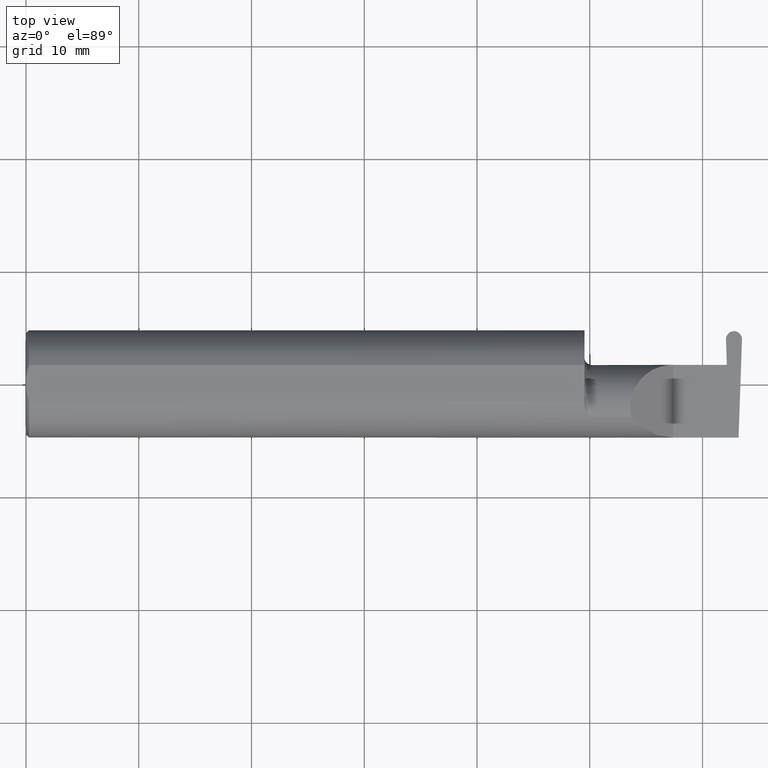
[diagram: clean part render]
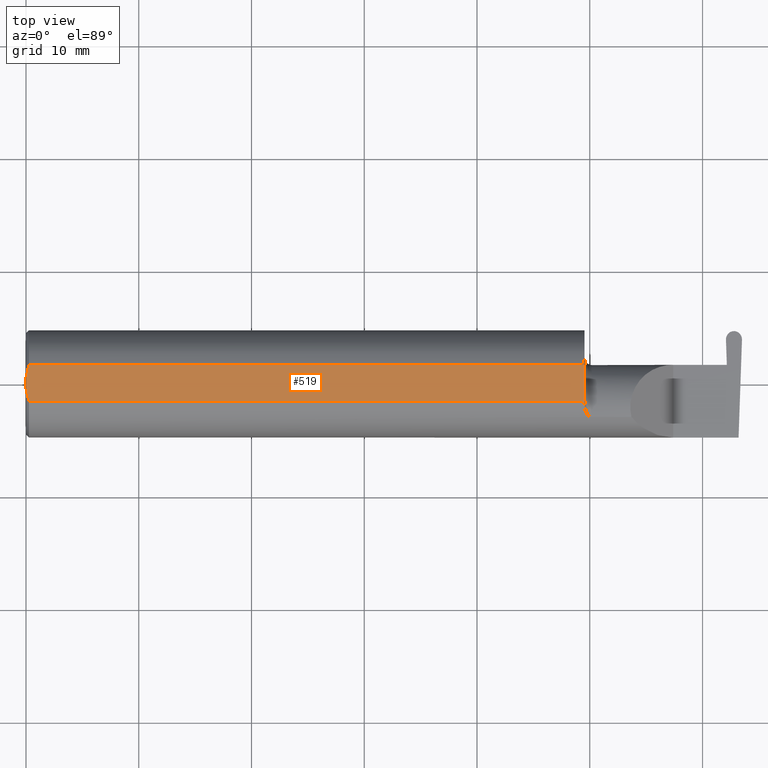
[diagram: same view with one face highlighted and labeled with its STEP entity id]
A machine part, top view. The second image highlights one B-rep face of the part: STEP entity #519.
In plain terms, the highlighted planar face has unit normal (0, 0, 1).
Its self-contained STEP definition (entity closure, byte-faithful):
#47 = ORIENTED_EDGE ( 'NONE', *, *, #165, .T. ) ;
#52 = LINE ( 'NONE', #478, #658 ) ;
#68 = DIRECTION ( 'NONE',  ( 1.000000000000000000, 0.000000000000000000, -0.000000000000000000 ) ) ;
#71 = CARTESIAN_POINT ( 'NONE',  ( 0.001616639753276218755, 0.03405189565400963680, 0.1763499999999999235 ) ) ;
#85 = VECTOR ( 'NONE', #417, 39.37007874015748143 ) ;
#101 = DIRECTION ( 'NONE',  ( -3.456985211662611914E-17, 1.000000000000000000, 0.000000000000000000 ) ) ;
#113 = CARTESIAN_POINT ( 'NONE',  ( 1.949999999999999956, 0.1873499999999998222, 0.1763499999999999235 ) ) ;
#121 = CARTESIAN_POINT ( 'NONE',  ( 0.000000000000000000, 0.01880691362239451242, 0.1763499999999999235 ) ) ;
#130 = CARTESIAN_POINT ( 'NONE',  ( 0.000000000000000000, 0.01880691362239451242, 0.1763499999999999235 ) ) ;
#158 = CARTESIAN_POINT ( 'NONE',  ( 0.000000000000000000, -0.01880691362239451242, 0.1763499999999999235 ) ) ;
#165 = EDGE_CURVE ( 'NONE', #430, #457, #352, .T. ) ;
#170 = VECTOR ( 'NONE', #325, 39.37007874015748143 ) ;
#174 = CARTESIAN_POINT ( 'NONE',  ( 0.005155213631852355663, 0.04890080824240217866, 0.1763499999999999235 ) ) ;
#177 = ORIENTED_EDGE ( 'NONE', *, *, #347, .F. ) ;
#194 = ORIENTED_EDGE ( 'NONE', *, *, #288, .T. ) ;
#200 = CARTESIAN_POINT ( 'NONE',  ( 0.000000000000000000, -0.01880691362239451242, 0.1763499999999999235 ) ) ;
#205 = VERTEX_POINT ( 'NONE', #528 ) ;
#266 = EDGE_LOOP ( 'NONE', ( #194, #541, #47, #341, #707, #177 ) ) ;
#267 = B_SPLINE_CURVE_WITH_KNOTS ( 'NONE', 3,
 ( #274, #332, #322, #200 ),
 .UNSPECIFIED., .F., .F.,
 ( 4, 4 ),
 ( 0.009771445421851449736, 0.01092787937989102981 ),
 .UNSPECIFIED. ) ;
#274 = CARTESIAN_POINT ( 'NONE',  ( 0.009999999999999346217, -0.06325108694718235836, 0.1763499999999999235 ) ) ;
#281 = EDGE_CURVE ( 'NONE', #296, #579, #600, .T. ) ;
#288 = EDGE_CURVE ( 'NONE', #205, #476, #52, .T. ) ;
#296 = VERTEX_POINT ( 'NONE', #158 ) ;
#299 = EDGE_CURVE ( 'NONE', #476, #430, #704, .T. ) ;
#306 = CARTESIAN_POINT ( 'NONE',  ( 0.000000000000000000, 0.06325108694718235836, 0.1763499999999999235 ) ) ;
#322 = CARTESIAN_POINT ( 'NONE',  ( 0.001595548104417217512, -0.03385300050298979679, 0.1763499999999999235 ) ) ;
#325 = DIRECTION ( 'NONE',  ( -0.000000000000000000, 1.000000000000000000, -0.000000000000000000 ) ) ;
#332 = CARTESIAN_POINT ( 'NONE',  ( 0.005151108632379595466, -0.04888864921576189376, 0.1763499999999999235 ) ) ;
#341 = ORIENTED_EDGE ( 'NONE', *, *, #462, .F. ) ;
#343 = CARTESIAN_POINT ( 'NONE',  ( 0.009999999999999346217, 0.06325108694718235836, 0.1763499999999999235 ) ) ;
#347 = EDGE_CURVE ( 'NONE', #205, #296, #267, .T. ) ;
#352 = LINE ( 'NONE', #306, #85 ) ;
#389 = B_SPLINE_CURVE_WITH_KNOTS ( 'NONE', 3,
 ( #121, #71, #174, #343 ),
 .UNSPECIFIED., .F., .F.,
 ( 4, 4 ),
 ( 0.01188664626022267051, 0.01304646959483758001 ),
 .UNSPECIFIED. ) ;
#394 = CARTESIAN_POINT ( 'NONE',  ( 1.949999999999999956, 0.06325108694718235836, 0.1763499999999999235 ) ) ;
#417 = DIRECTION ( 'NONE',  ( -1.000000000000000000, -0.000000000000000000, -0.000000000000000000 ) ) ;
#430 = VERTEX_POINT ( 'NONE', #394 ) ;
#446 = VECTOR ( 'NONE', #101, 39.37007874015748143 ) ;
#447 = CARTESIAN_POINT ( 'NONE',  ( 2.876828993045917215, 0.1873499999999998500, 0.1763499999999999235 ) ) ;
#457 = VERTEX_POINT ( 'NONE', #564 ) ;
#462 = EDGE_CURVE ( 'NONE', #579, #457, #389, .T. ) ;
#470 = AXIS2_PLACEMENT_3D ( 'NONE', #447, #671, #68 ) ;
#476 = VERTEX_POINT ( 'NONE', #667 ) ;
#478 = CARTESIAN_POINT ( 'NONE',  ( 0.000000000000000000, -0.06325108694718235836, 0.1763499999999999235 ) ) ;
#519 = ADVANCED_FACE ( 'NONE', ( #615 ), #664, .T. ) ;
#528 = CARTESIAN_POINT ( 'NONE',  ( 0.009999999999999346217, -0.06325108694718235836, 0.1763499999999999235 ) ) ;
#540 = DIRECTION ( 'NONE',  ( 1.000000000000000000, 0.000000000000000000, 0.000000000000000000 ) ) ;
#541 = ORIENTED_EDGE ( 'NONE', *, *, #299, .T. ) ;
#564 = CARTESIAN_POINT ( 'NONE',  ( 0.009999999999999346217, 0.06325108694718235836, 0.1763499999999999235 ) ) ;
#579 = VERTEX_POINT ( 'NONE', #130 ) ;
#600 = LINE ( 'NONE', #605, #170 ) ;
#605 = CARTESIAN_POINT ( 'NONE',  ( 0.000000000000000000, 0.1873499999999998500, 0.1763499999999999235 ) ) ;
#615 = FACE_OUTER_BOUND ( 'NONE', #266, .T. ) ;
#658 = VECTOR ( 'NONE', #540, 39.37007874015748143 ) ;
#664 = PLANE ( 'NONE',  #470 ) ;
#667 = CARTESIAN_POINT ( 'NONE',  ( 1.949999999999999956, -0.06325108694718283020, 0.1763499999999999235 ) ) ;
#671 = DIRECTION ( 'NONE',  ( 0.000000000000000000, 0.000000000000000000, 1.000000000000000000 ) ) ;
#704 = LINE ( 'NONE', #113, #446 ) ;
#707 = ORIENTED_EDGE ( 'NONE', *, *, #281, .F. ) ;